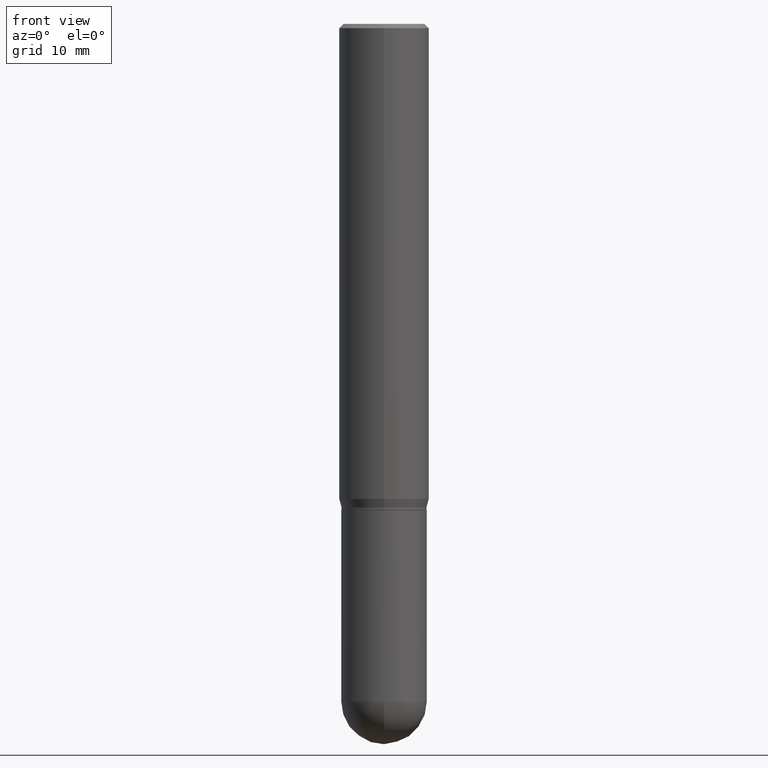
[diagram: clean part render]
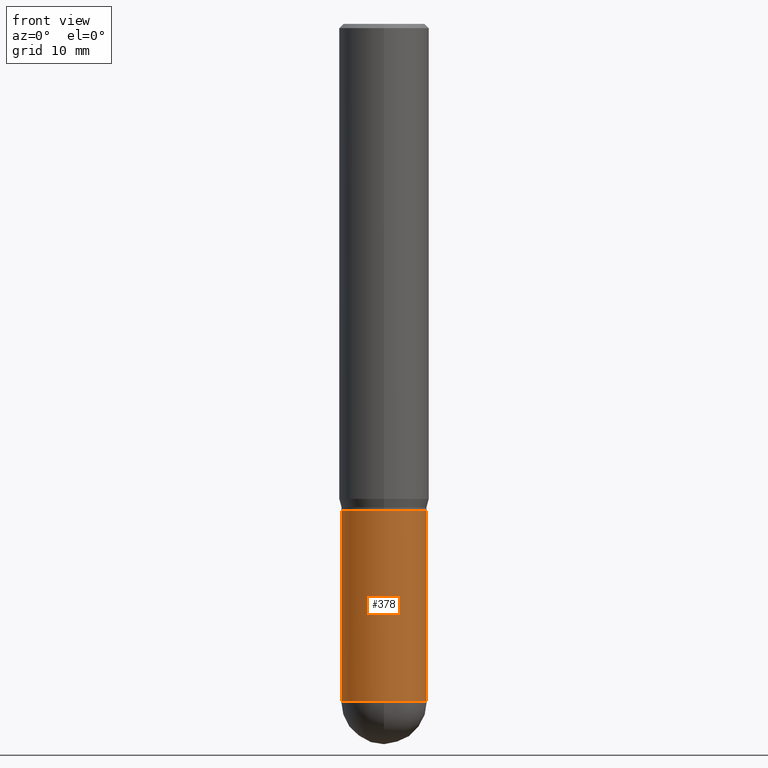
[diagram: same view with one face highlighted and labeled with its STEP entity id]
A machine part, front view. The second image highlights one B-rep face of the part: STEP entity #378.
In plain terms, the highlighted cylindrical surface (partial cylindrical patch) has radius 3.7706 mm, axis along (-0, 0, 1).
Its self-contained STEP definition (entity closure, byte-faithful):
#1 = AXIS2_PLACEMENT_3D ( 'NONE', #288, #17, #325 ) ;
#10 = AXIS2_PLACEMENT_3D ( 'NONE', #424, #73, #376 ) ;
#17 = DIRECTION ( 'NONE',  ( -2.445468806185136597E-29, 3.491481338843145583E-15, 1.000000000000000000 ) ) ;
#23 = CARTESIAN_POINT ( 'NONE',  ( 0.000000000000000000, 0.000000000000000000, 0.000000000000000000 ) ) ;
#35 = CIRCLE ( 'NONE', #10, 0.1484499999999999986 ) ;
#40 = ORIENTED_EDGE ( 'NONE', *, *, #339, .F. ) ;
#71 = DIRECTION ( 'NONE',  ( -2.445468806185136877E-29, 3.491481338843145188E-15, 1.000000000000000000 ) ) ;
#73 = DIRECTION ( 'NONE',  ( -2.445468806185136597E-29, 3.491481338843145583E-15, 1.000000000000000000 ) ) ;
#81 = CARTESIAN_POINT ( 'NONE',  ( -0.1484499999999999986, -5.997206029926045282E-15, -1.688000000000000167 ) ) ;
#84 = DIRECTION ( 'NONE',  ( 1.000000000000000000, -6.982962677686261189E-15, 0.000000000000000000 ) ) ;
#93 = DIRECTION ( 'NONE',  ( -2.445468806185136877E-29, 3.491481338843145188E-15, 1.000000000000000000 ) ) ;
#106 = CIRCLE ( 'NONE', #1, 0.1484499999999999986 ) ;
#109 = VERTEX_POINT ( 'NONE', #492 ) ;
#126 = ORIENTED_EDGE ( 'NONE', *, *, #159, .F. ) ;
#141 = VECTOR ( 'NONE', #71, 39.37007874015748143 ) ;
#148 = ORIENTED_EDGE ( 'NONE', *, *, #509, .T. ) ;
#157 = VECTOR ( 'NONE', #93, 39.37007874015748143 ) ;
#159 = EDGE_CURVE ( 'NONE', #351, #439, #212, .T. ) ;
#188 = LINE ( 'NONE', #190, #141 ) ;
#190 = CARTESIAN_POINT ( 'NONE',  ( 0.1484499999999999986, -1.036620809502526093E-15, 7.238684423669066410E-30 ) ) ;
#212 = LINE ( 'NONE', #362, #157 ) ;
#221 = CARTESIAN_POINT ( 'NONE',  ( 0.1484499999999999986, -6.930241309469756235E-15, -1.688000000000000167 ) ) ;
#228 = EDGE_CURVE ( 'NONE', #351, #109, #106, .T. ) ;
#236 = CARTESIAN_POINT ( 'NONE',  ( 5.750642171184658911E-29, -8.210392942356599628E-15, -2.351550000000000029 ) ) ;
#273 = AXIS2_PLACEMENT_3D ( 'NONE', #23, #333, #462 ) ;
#276 = EDGE_CURVE ( 'NONE', #490, #374, #188, .T. ) ;
#288 = CARTESIAN_POINT ( 'NONE',  ( 5.750642171184658911E-29, -8.210392942356599628E-15, -2.351550000000000029 ) ) ;
#289 = AXIS2_PLACEMENT_3D ( 'NONE', #236, #425, #84 ) ;
#295 = CARTESIAN_POINT ( 'NONE',  ( -0.1484500000000000264, -5.997206029926045282E-15, -2.351550000000000029 ) ) ;
#300 = CYLINDRICAL_SURFACE ( 'NONE', #273, 0.1484499999999999986 ) ;
#325 = DIRECTION ( 'NONE',  ( 1.000000000000000000, -6.982962677686261189E-15, 0.000000000000000000 ) ) ;
#333 = DIRECTION ( 'NONE',  ( -2.445468806185136597E-29, 3.491481338843145583E-15, 1.000000000000000000 ) ) ;
#339 = EDGE_CURVE ( 'NONE', #439, #374, #35, .T. ) ;
#351 = VERTEX_POINT ( 'NONE', #295 ) ;
#362 = CARTESIAN_POINT ( 'NONE',  ( -0.1484499999999999986, 1.054800691235868716E-15, -7.302159141483407353E-30 ) ) ;
#370 = FACE_OUTER_BOUND ( 'NONE', #391, .T. ) ;
#374 = VERTEX_POINT ( 'NONE', #221 ) ;
#376 = DIRECTION ( 'NONE',  ( 1.000000000000000000, -6.982962677686268288E-15, 0.000000000000000000 ) ) ;
#378 = ADVANCED_FACE ( 'NONE', ( #370 ), #300, .T. ) ;
#391 = EDGE_LOOP ( 'NONE', ( #126, #435, #148, #453, #40 ) ) ;
#424 = CARTESIAN_POINT ( 'NONE',  ( 4.127951344840510809E-29, -5.893620499967230340E-15, -1.688000000000000167 ) ) ;
#425 = DIRECTION ( 'NONE',  ( -2.445468806185136597E-29, 3.491481338843145583E-15, 1.000000000000000000 ) ) ;
#435 = ORIENTED_EDGE ( 'NONE', *, *, #228, .T. ) ;
#439 = VERTEX_POINT ( 'NONE', #81 ) ;
#451 = CIRCLE ( 'NONE', #289, 0.1484499999999999986 ) ;
#453 = ORIENTED_EDGE ( 'NONE', *, *, #276, .T. ) ;
#462 = DIRECTION ( 'NONE',  ( 1.000000000000000000, -6.982962677686265133E-15, 4.876176775795935793E-29 ) ) ;
#490 = VERTEX_POINT ( 'NONE', #505 ) ;
#492 = CARTESIAN_POINT ( 'NONE',  ( -1.054800691235810932E-15, -0.1484500000000082143, -2.351549999999999585 ) ) ;
#505 = CARTESIAN_POINT ( 'NONE',  ( 0.1484500000000000264, -8.088627530664441274E-15, -2.351550000000000029 ) ) ;
#509 = EDGE_CURVE ( 'NONE', #109, #490, #451, .T. ) ;